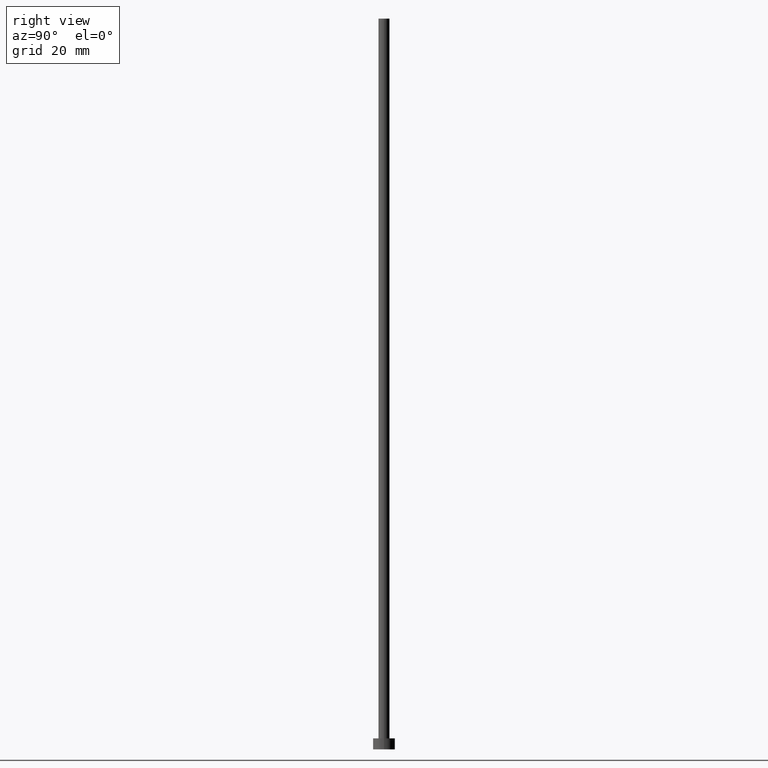
[diagram: clean part render]
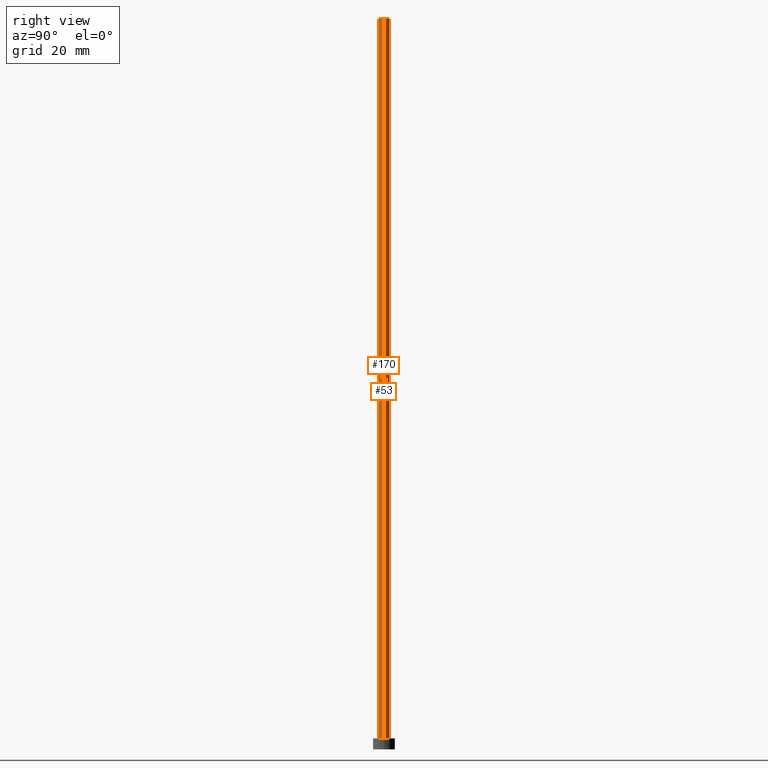
[diagram: same view with one multi-face feature highlighted, each face labeled with its STEP entity id]
A machine part, right view. The highlighted faces form ONE feature: a constant-radius fillet chain: 2 tangent blend faces with common blend radius 1.5 mm. The faces share edges in the B-rep.
Their STEP definitions:
[1] entity #170 (Cylinder):
#2 = EDGE_LOOP ( 'NONE', ( #252, #20, #218, #165 ) ) ;
#10 = DIRECTION ( 'NONE',  ( -0.000000000000000000, -0.000000000000000000, -1.000000000000000000 ) ) ;
#18 = AXIS2_PLACEMENT_3D ( 'NONE', #25, #136, #159 ) ;
#20 = ORIENTED_EDGE ( 'NONE', *, *, #116, .F. ) ;
#21 = EDGE_CURVE ( 'NONE', #163, #172, #151, .T. ) ;
#22 = AXIS2_PLACEMENT_3D ( 'NONE', #28, #245, #83 ) ;
#25 = CARTESIAN_POINT ( 'NONE',  ( 0.000000000000000000, 0.000000000000000000, 3.000000000000000000 ) ) ;
#28 = CARTESIAN_POINT ( 'NONE',  ( 0.000000000000000000, 0.000000000000000000, 200.0000000000000000 ) ) ;
#32 = CYLINDRICAL_SURFACE ( 'NONE', #225, 1.500000000000000222 ) ;
#49 = CARTESIAN_POINT ( 'NONE',  ( 1.500000000000000222, 1.836970198721030181E-16, 200.0000000000000000 ) ) ;
#52 = DIRECTION ( 'NONE',  ( -1.000000000000000000, 0.000000000000000000, 0.000000000000000000 ) ) ;
#58 = CARTESIAN_POINT ( 'NONE',  ( 1.500000000000000222, 1.836970198721030181E-16, 200.0000000000000000 ) ) ;
#67 = LINE ( 'NONE', #176, #76 ) ;
#76 = VECTOR ( 'NONE', #10, 1000.000000000000000 ) ;
#83 = DIRECTION ( 'NONE',  ( 1.000000000000000000, 0.000000000000000000, 0.000000000000000000 ) ) ;
#96 = DIRECTION ( 'NONE',  ( -0.000000000000000000, -0.000000000000000000, -1.000000000000000000 ) ) ;
#104 = DIRECTION ( 'NONE',  ( -0.000000000000000000, -0.000000000000000000, -1.000000000000000000 ) ) ;
#116 = EDGE_CURVE ( 'NONE', #152, #130, #141, .T. ) ;
#120 = CARTESIAN_POINT ( 'NONE',  ( -1.500000000000000222, 0.000000000000000000, 3.000000000000000000 ) ) ;
#122 = FACE_OUTER_BOUND ( 'NONE', #2, .T. ) ;
#130 = VERTEX_POINT ( 'NONE', #49 ) ;
#136 = DIRECTION ( 'NONE',  ( 0.000000000000000000, 0.000000000000000000, 1.000000000000000000 ) ) ;
#141 = CIRCLE ( 'NONE', #22, 1.500000000000000222 ) ;
#151 = CIRCLE ( 'NONE', #18, 1.500000000000000222 ) ;
#152 = VERTEX_POINT ( 'NONE', #230 ) ;
#159 = DIRECTION ( 'NONE',  ( 1.000000000000000000, 0.000000000000000000, 0.000000000000000000 ) ) ;
#163 = VERTEX_POINT ( 'NONE', #120 ) ;
#165 = ORIENTED_EDGE ( 'NONE', *, *, #21, .T. ) ;
#170 = ADVANCED_FACE ( 'NONE', ( #122 ), #32, .T. ) ;
#172 = VERTEX_POINT ( 'NONE', #183 ) ;
#176 = CARTESIAN_POINT ( 'NONE',  ( -1.500000000000000222, 0.000000000000000000, 200.0000000000000000 ) ) ;
#183 = CARTESIAN_POINT ( 'NONE',  ( 1.500000000000000222, 1.836970198721030181E-16, 3.000000000000000000 ) ) ;
#186 = EDGE_CURVE ( 'NONE', #152, #163, #67, .T. ) ;
#200 = CARTESIAN_POINT ( 'NONE',  ( 0.000000000000000000, 0.000000000000000000, 200.0000000000000000 ) ) ;
#208 = VECTOR ( 'NONE', #96, 1000.000000000000000 ) ;
#213 = EDGE_CURVE ( 'NONE', #130, #172, #241, .T. ) ;
#218 = ORIENTED_EDGE ( 'NONE', *, *, #186, .T. ) ;
#225 = AXIS2_PLACEMENT_3D ( 'NONE', #200, #104, #52 ) ;
#230 = CARTESIAN_POINT ( 'NONE',  ( -1.500000000000000222, 0.000000000000000000, 200.0000000000000000 ) ) ;
#241 = LINE ( 'NONE', #58, #208 ) ;
#245 = DIRECTION ( 'NONE',  ( 0.000000000000000000, 0.000000000000000000, 1.000000000000000000 ) ) ;
#252 = ORIENTED_EDGE ( 'NONE', *, *, #213, .F. ) ;
[2] entity #53 (Cylinder):
#6 = AXIS2_PLACEMENT_3D ( 'NONE', #31, #226, #181 ) ;
#10 = DIRECTION ( 'NONE',  ( -0.000000000000000000, -0.000000000000000000, -1.000000000000000000 ) ) ;
#31 = CARTESIAN_POINT ( 'NONE',  ( 0.000000000000000000, 0.000000000000000000, 200.0000000000000000 ) ) ;
#44 = EDGE_LOOP ( 'NONE', ( #77, #59, #246, #134 ) ) ;
#49 = CARTESIAN_POINT ( 'NONE',  ( 1.500000000000000222, 1.836970198721030181E-16, 200.0000000000000000 ) ) ;
#50 = EDGE_CURVE ( 'NONE', #130, #152, #57, .T. ) ;
#53 = ADVANCED_FACE ( 'NONE', ( #81 ), #66, .T. ) ;
#57 = CIRCLE ( 'NONE', #156, 1.500000000000000222 ) ;
#58 = CARTESIAN_POINT ( 'NONE',  ( 1.500000000000000222, 1.836970198721030181E-16, 200.0000000000000000 ) ) ;
#59 = ORIENTED_EDGE ( 'NONE', *, *, #213, .T. ) ;
#61 = CARTESIAN_POINT ( 'NONE',  ( 0.000000000000000000, 0.000000000000000000, 3.000000000000000000 ) ) ;
#63 = DIRECTION ( 'NONE',  ( 0.000000000000000000, 0.000000000000000000, 1.000000000000000000 ) ) ;
#66 = CYLINDRICAL_SURFACE ( 'NONE', #6, 1.500000000000000222 ) ;
#67 = LINE ( 'NONE', #176, #76 ) ;
#76 = VECTOR ( 'NONE', #10, 1000.000000000000000 ) ;
#77 = ORIENTED_EDGE ( 'NONE', *, *, #50, .F. ) ;
#81 = FACE_OUTER_BOUND ( 'NONE', #44, .T. ) ;
#96 = DIRECTION ( 'NONE',  ( -0.000000000000000000, -0.000000000000000000, -1.000000000000000000 ) ) ;
#98 = EDGE_CURVE ( 'NONE', #172, #163, #177, .T. ) ;
#120 = CARTESIAN_POINT ( 'NONE',  ( -1.500000000000000222, 0.000000000000000000, 3.000000000000000000 ) ) ;
#128 = AXIS2_PLACEMENT_3D ( 'NONE', #61, #63, #142 ) ;
#130 = VERTEX_POINT ( 'NONE', #49 ) ;
#134 = ORIENTED_EDGE ( 'NONE', *, *, #186, .F. ) ;
#142 = DIRECTION ( 'NONE',  ( 1.000000000000000000, 0.000000000000000000, 0.000000000000000000 ) ) ;
#145 = CARTESIAN_POINT ( 'NONE',  ( 0.000000000000000000, 0.000000000000000000, 200.0000000000000000 ) ) ;
#152 = VERTEX_POINT ( 'NONE', #230 ) ;
#156 = AXIS2_PLACEMENT_3D ( 'NONE', #145, #204, #160 ) ;
#160 = DIRECTION ( 'NONE',  ( 1.000000000000000000, 0.000000000000000000, 0.000000000000000000 ) ) ;
#163 = VERTEX_POINT ( 'NONE', #120 ) ;
#172 = VERTEX_POINT ( 'NONE', #183 ) ;
#176 = CARTESIAN_POINT ( 'NONE',  ( -1.500000000000000222, 0.000000000000000000, 200.0000000000000000 ) ) ;
#177 = CIRCLE ( 'NONE', #128, 1.500000000000000222 ) ;
#181 = DIRECTION ( 'NONE',  ( -1.000000000000000000, 0.000000000000000000, 0.000000000000000000 ) ) ;
#183 = CARTESIAN_POINT ( 'NONE',  ( 1.500000000000000222, 1.836970198721030181E-16, 3.000000000000000000 ) ) ;
#186 = EDGE_CURVE ( 'NONE', #152, #163, #67, .T. ) ;
#204 = DIRECTION ( 'NONE',  ( 0.000000000000000000, 0.000000000000000000, 1.000000000000000000 ) ) ;
#208 = VECTOR ( 'NONE', #96, 1000.000000000000000 ) ;
#213 = EDGE_CURVE ( 'NONE', #130, #172, #241, .T. ) ;
#226 = DIRECTION ( 'NONE',  ( -0.000000000000000000, -0.000000000000000000, -1.000000000000000000 ) ) ;
#230 = CARTESIAN_POINT ( 'NONE',  ( -1.500000000000000222, 0.000000000000000000, 200.0000000000000000 ) ) ;
#241 = LINE ( 'NONE', #58, #208 ) ;
#246 = ORIENTED_EDGE ( 'NONE', *, *, #98, .T. ) ;